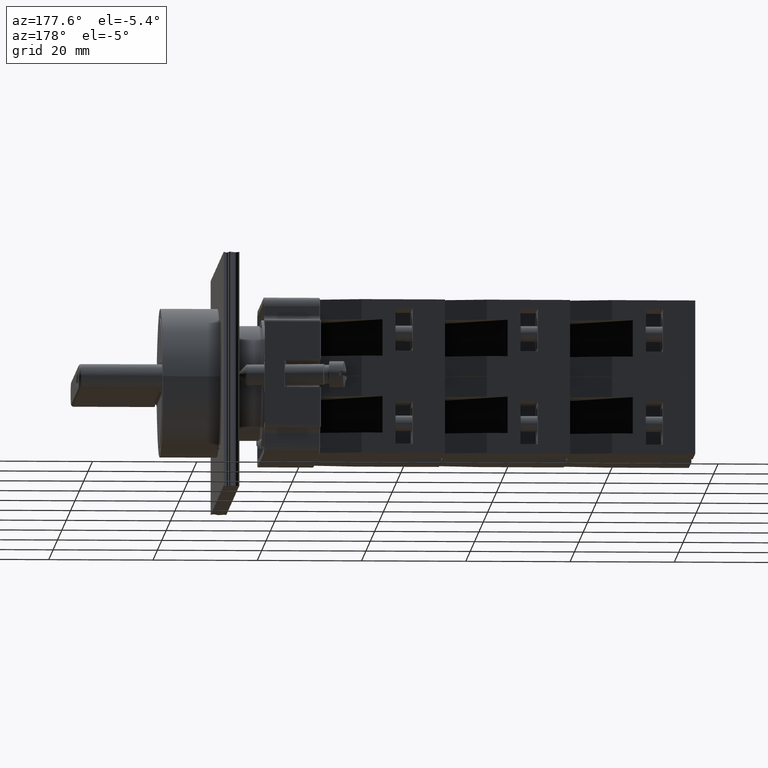
[diagram: clean part render]
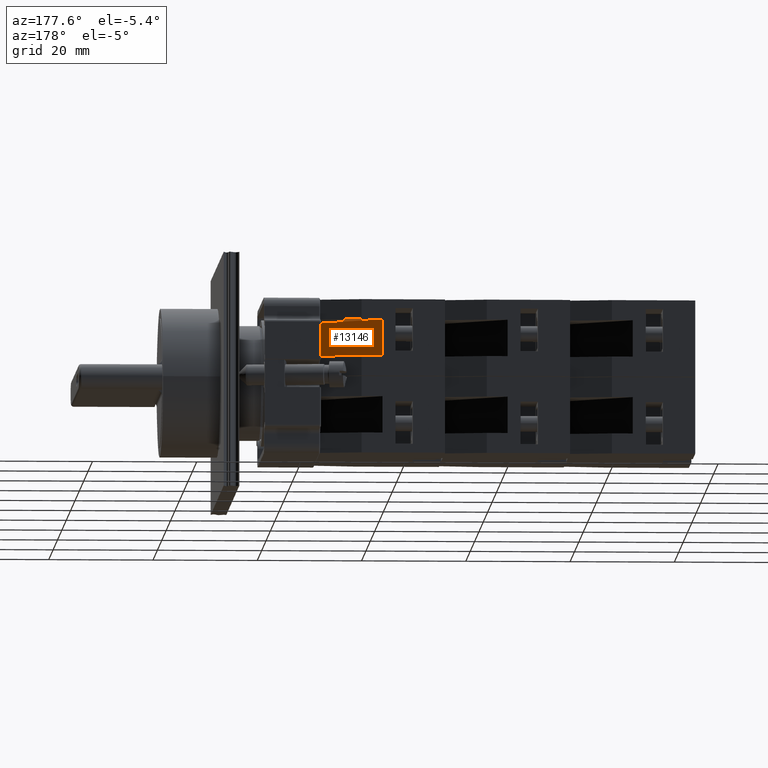
[diagram: same view with one face highlighted and labeled with its STEP entity id]
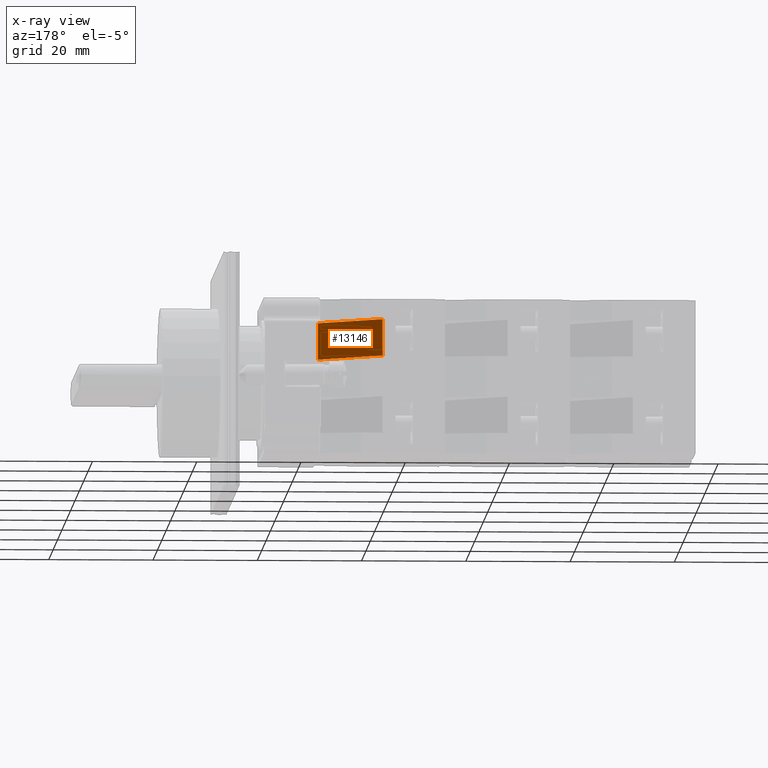
[diagram: x-ray of the same camera — body ghosted, the highlighted face saturated]
A machine part, auxiliary view. The second image highlights one B-rep face of the part: STEP entity #13146.
The next image is the same camera in x-ray: the body ghosted, the highlighted face saturated — about 0% of this face is hidden behind the body in this view.
In plain terms, the highlighted planar face has unit normal (-0.6, -0.8, 0).
Its self-contained STEP definition (entity closure, byte-faithful):
#13091=CARTESIAN_POINT('',(-24.936741828918464,-0.202926676720378,10.850000000000000));
#13092=VERTEX_POINT('',#13091);
#13099=CARTESIAN_POINT('',(-15.936741828918466,11.797073323279626,10.850000000000000));
#13100=VERTEX_POINT('',#13099);
#13101=CARTESIAN_POINT('',(-24.936741828918464,-0.202926676720378,10.850000000000000));
#13102=DIRECTION('',(0.600000000000000,0.800000000000000,0.0));
#13103=VECTOR('',#13102,15.000000000000002);
#13104=LINE('',#13101,#13103);
#13105=EDGE_CURVE('',#13092,#13100,#13104,.T.);
#13116=CARTESIAN_POINT('',(-15.936741828918466,11.797073323279626,7.350000000000000));
#13117=DIRECTION('',(-0.800000000000000,0.600000000000000,0.0));
#13118=DIRECTION('',(0.0,0.0,1.0));
#13119=AXIS2_PLACEMENT_3D('',#13116,#13117,#13118);
#13120=PLANE('',#13119);
#13121=CARTESIAN_POINT('',(-15.936741828918466,11.797073323279626,3.850000000000001));
#13122=VERTEX_POINT('',#13121);
#13123=CARTESIAN_POINT('',(-24.936741828918464,-0.202926676720378,3.850000000000001));
#13124=VERTEX_POINT('',#13123);
#13125=CARTESIAN_POINT('',(-15.936741828918466,11.797073323279626,3.850000000000001));
#13126=DIRECTION('',(-0.600000000000000,-0.800000000000000,0.0));
#13127=VECTOR('',#13126,15.000000000000002);
#13128=LINE('',#13125,#13127);
#13129=EDGE_CURVE('',#13122,#13124,#13128,.T.);
#13130=ORIENTED_EDGE('',*,*,#13129,.F.);
#13131=CARTESIAN_POINT('',(-15.936741828918466,11.797073323279626,10.850000000000000));
#13132=DIRECTION('',(0.0,0.0,-1.0));
#13133=VECTOR('',#13132,6.999999999999999);
#13134=LINE('',#13131,#13133);
#13135=EDGE_CURVE('',#13100,#13122,#13134,.T.);
#13136=ORIENTED_EDGE('',*,*,#13135,.F.);
#13137=ORIENTED_EDGE('',*,*,#13105,.F.);
#13138=CARTESIAN_POINT('',(-24.936741828918464,-0.202926676720378,3.850000000000001));
#13139=DIRECTION('',(0.0,0.0,1.0));
#13140=VECTOR('',#13139,6.999999999999999);
#13141=LINE('',#13138,#13140);
#13142=EDGE_CURVE('',#13124,#13092,#13141,.T.);
#13143=ORIENTED_EDGE('',*,*,#13142,.F.);
#13144=EDGE_LOOP('',(#13130,#13136,#13137,#13143));
#13145=FACE_OUTER_BOUND('',#13144,.T.);
#13146=ADVANCED_FACE('',(#13145),#13120,.F.);